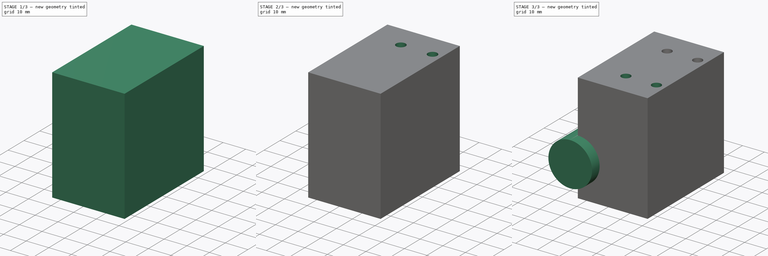
[diagram: build sequence overview — one tinted view per stage of 3, left to right]
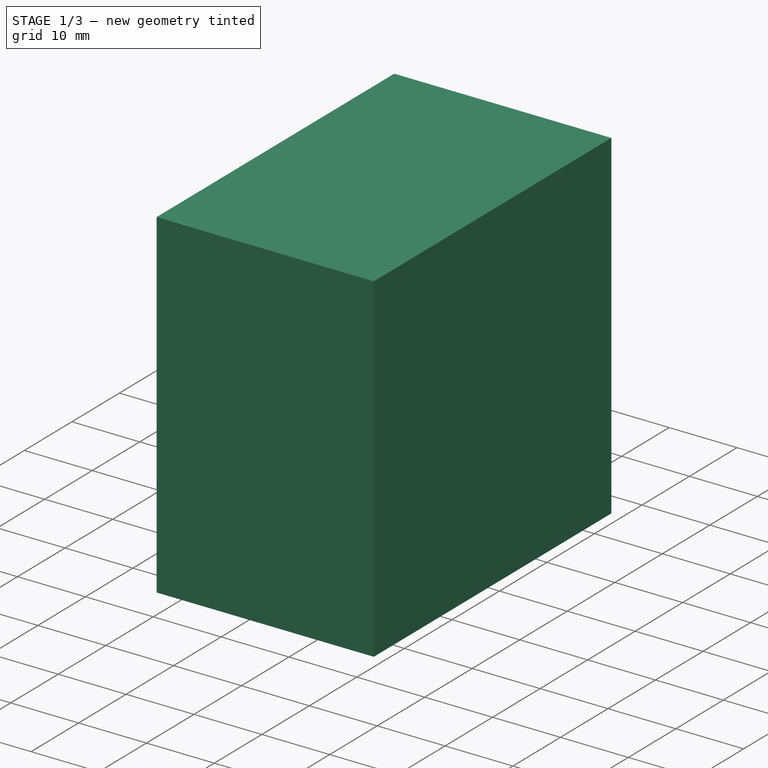
[diagram: stage 1 of 3 — iso view after this stage's code; geometry added in this stage tinted green]
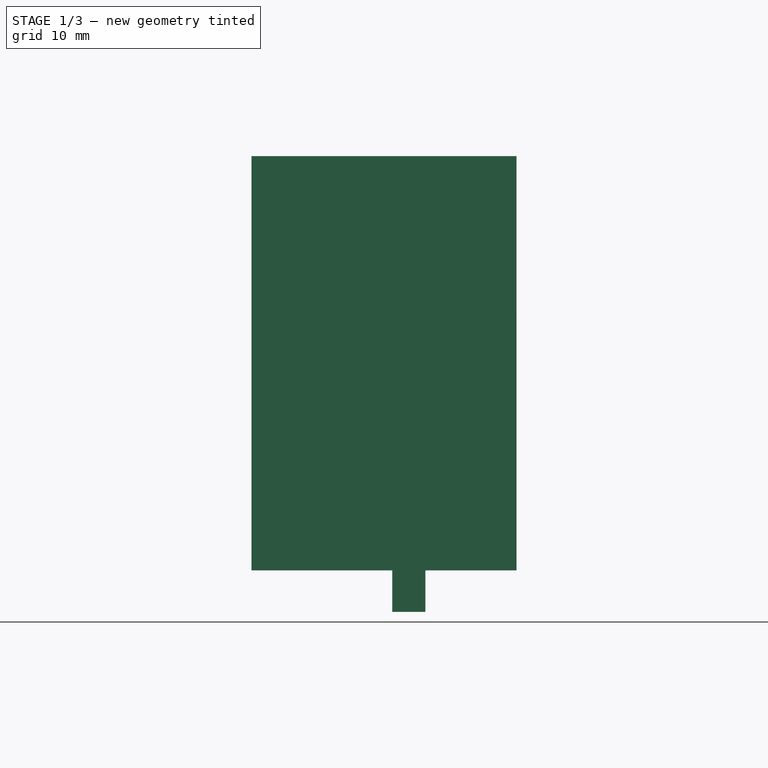
[diagram: stage 1 of 3 — front view after this stage's code; geometry added in this stage tinted green]
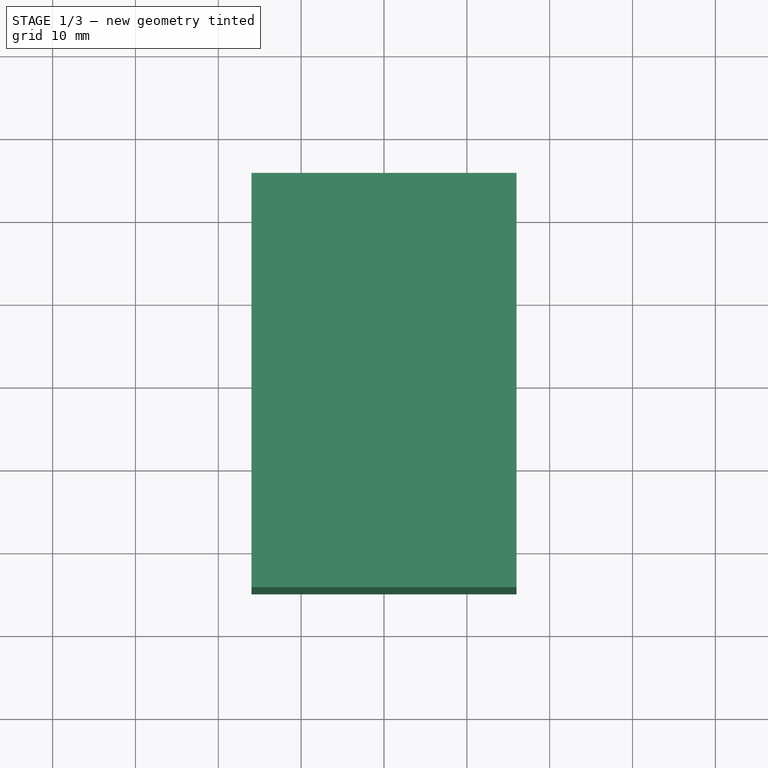
[diagram: stage 1 of 3 — top view after this stage's code; geometry added in this stage tinted green]
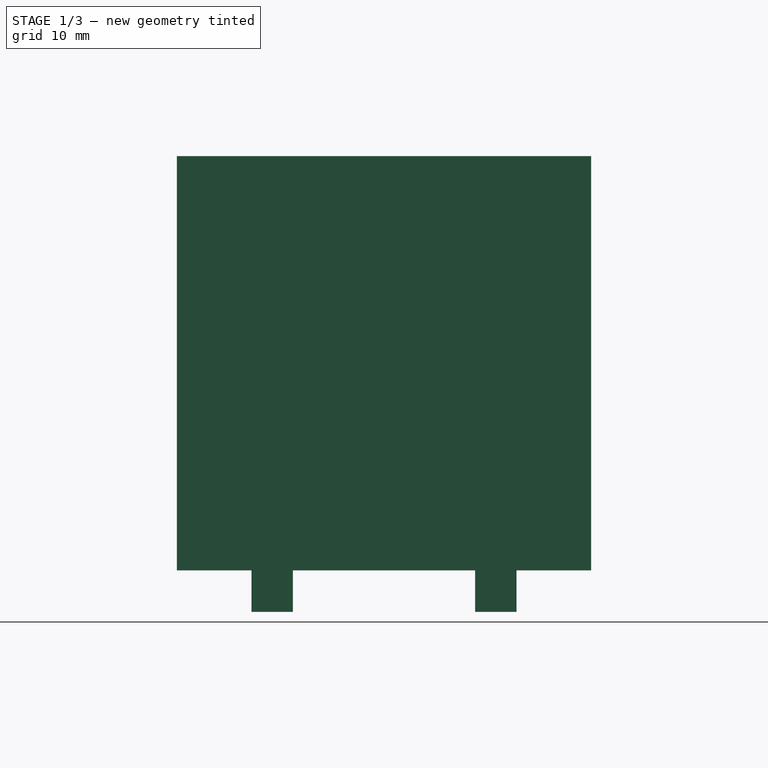
[diagram: stage 1 of 3 — right view after this stage's code; geometry added in this stage tinted green]
FCSTD DOCUMENT  (FreeCAD 2021.0205R23662 +3201 (Git))
Label: tutorial_entry_level
License: All rights reserved
LicenseURL: http://en.wikipedia.org/wiki/All_rights_reserved
objects: Sketcher::SketchObject×5, PartDesign::Pad×3, Spreadsheet::Sheet×1, PartDesign::Pocket×1, PartDesign::Mirrored×1, PartDesign::Plane×1, PartDesign::Body×1, App::Part×1
note: 21 computed .brp shape members not serialized (recipe doc carries the construction recipe); baked Part::Feature solids carry a one-line shape summary decoded from their .brp

FEATURE [Sketcher::SketchObject] Sketch  label="Master"
  FullyConstrained = true
  MapMode = 5
  Support = -> [XY_Plane001]
  sketch-geometry (4):
    g0: LineSegment StartX=-16 StartY=25 StartZ=0 EndX=16 EndY=25 EndZ=0
    g1: LineSegment StartX=16 StartY=25 StartZ=0 EndX=16 EndY=-25 EndZ=0
    g2: LineSegment StartX=16 StartY=-25 StartZ=0 EndX=-16 EndY=-25 EndZ=0
    g3: LineSegment StartX=-16 StartY=-25 StartZ=0 EndX=-16 EndY=25 EndZ=0
  constraints (11):
    c: Coincident(g0,g1)
    c: Coincident(g1,g2)
    c: Coincident(g2,g3)
    c: Coincident(g3,g0)
    c: Horizontal(g0)
    c: Horizontal(g2)
    c: Vertical(g1)
    c: Vertical(g3)
    c: DistanceX(g0,g0) = 32
    c: DistanceY(g3,g3) = 50  'body length'
    c: Symmetric(g2,g0,g-1)
FEATURE [Spreadsheet::Sheet] Spreadsheet  label="param"
  PythonMode = false
  cells = A1=height; B1(height)=50
FEATURE [Sketcher::SketchObject] Sketch001
  FullyConstrained = true
  MapMode = 5
  Support = -> [XY_Plane001]
  expr: Constraints[8] = Sketch.Constraints[8]
  expr: Constraints[9] = Sketch.Constraints.body length
  sketch-geometry (4):
    g0: LineSegment StartX=-16 StartY=25 StartZ=0 EndX=16 EndY=25 EndZ=0
    g1: LineSegment StartX=16 StartY=25 StartZ=0 EndX=16 EndY=-25 EndZ=0
    g2: LineSegment StartX=16 StartY=-25 StartZ=0 EndX=-16 EndY=-25 EndZ=0
    g3: LineSegment StartX=-16 StartY=-25 StartZ=0 EndX=-16 EndY=25 EndZ=0
  constraints (11):
    c: Coincident(g0,g1)
    c: Coincident(g1,g2)
    c: Coincident(g2,g3)
    c: Coincident(g3,g0)
    c: Horizontal(g0)
    c: Horizontal(g2)
    c: Vertical(g1)
    c: Vertical(g3)
    c: DistanceX(g0,g0) = 32
    c: DistanceY(g3,g3) = 50
    c: Symmetric(g2,g0,g-1)
FEATURE [PartDesign::Pad] Pad
  ClaimChildren = false
  Direction = (1,1,1)
  Fit = 0
  FitJoin = 0
  InnerFit = 0
  InnerFitJoin = 0
  InnerTaperAngle = 0
  InnerTaperAngleRev = 0
  Length = 50
  Length2 = 100
  NewSolid = false
  Profile = -> Sketch001
  Suppress = false
  Type = 0
  expr: Length = <<param>>.height
FEATURE [Sketcher::SketchObject] Sketch002
  ExternalGeometry = -> [Sketch]
  FullyConstrained = true
  MapMode = 5
  Support = -> [XY_Plane001]
  expr: Constraints[23] = Constraints[<<width of metal>>]
  sketch-geometry (18):
    g0: LineSegment [constr] StartX=5 StartY=40 StartZ=0 EndX=5 EndY=-44.2367 EndZ=0
    g1: LineSegment [constr] StartX=1 StartY=36.3522 StartZ=0 EndX=1 EndY=-44.845 EndZ=0
    g2: LineSegment [constr] StartX=-43.3108 StartY=11 StartZ=0 EndX=43.3108 EndY=11 EndZ=0
    g3: LineSegment [constr] StartX=43.3108 StartY=11 StartZ=0 EndX=43.3108 EndY=-11 EndZ=0
    g4: LineSegment [constr] StartX=43.3108 StartY=-11 StartZ=0 EndX=-43.3108 EndY=-11 EndZ=0
    g5: LineSegment [constr] StartX=-43.3108 StartY=-11 StartZ=0 EndX=-43.3108 EndY=11 EndZ=0
    g6: LineSegment [constr] StartX=-34.8374 StartY=16 StartZ=0 EndX=38.4067 EndY=16 EndZ=0
    g7: LineSegment [constr] StartX=38.4067 StartY=16 StartZ=0 EndX=38.4067 EndY=-16 EndZ=0
    g8: LineSegment [constr] StartX=38.4067 StartY=-16 StartZ=0 EndX=-34.8374 EndY=-16 EndZ=0
    g9: LineSegment [constr] StartX=-34.8374 StartY=-16 StartZ=0 EndX=-34.8374 EndY=16 EndZ=0
    g10: LineSegment StartX=1 StartY=16 StartZ=0 EndX=5 EndY=16 EndZ=0
    g11: LineSegment StartX=5 StartY=16 StartZ=0 EndX=5 EndY=11 EndZ=0
    g12: LineSegment StartX=5 StartY=11 StartZ=0 EndX=1 EndY=11 EndZ=0
    g13: LineSegment StartX=1 StartY=11 StartZ=0 EndX=1 EndY=16 EndZ=0
    g14: LineSegment StartX=1 StartY=-11 StartZ=0 EndX=5 EndY=-11 EndZ=0
    g15: LineSegment StartX=5 StartY=-11 StartZ=0 EndX=5 EndY=-16 EndZ=0
    g16: LineSegment StartX=5 StartY=-16 StartZ=0 EndX=1 EndY=-16 EndZ=0
    g17: LineSegment StartX=1 StartY=-16 StartZ=0 EndX=1 EndY=-11 EndZ=0
  constraints (54):
    c: Vertical(g0)
    c: Vertical(g1)
    c: DistanceX(g0,g-3) = 11
    c: DistanceX(g1,g0) = 4
    c: Coincident(g2,g3)
    c: Coincident(g3,g4)
    c: Coincident(g4,g5)
    c: Coincident(g5,g2)
    c: Horizontal(g2)
    c: Horizontal(g4)
    c: Vertical(g3)
    c: Vertical(g5)
    c: DistanceY(g5,g5) = 22
    c: Symmetric(g3,g2,g-1)
    c: Coincident(g6,g7)
    c: Coincident(g7,g8)
    c: Coincident(g8,g9)
    c: Coincident(g9,g6)
    c: Horizontal(g6)
    c: Horizontal(g8)
    c: Vertical(g7)
    c: Vertical(g9)
    c: DistanceY(g2,g6) = 5  'width of metal'
    c: DistanceY(g7,g3) = 5
    c: Coincident(g10,g11)
    c: Coincident(g11,g12)
    c: Coincident(g12,g13)
    c: Coincident(g13,g10)
    c: Horizontal(g10)
    c: Horizontal(g12)
    c: Vertical(g11)
    c: Vertical(g13)
    c: Coincident(g14,g15)
    c: Coincident(g15,g16)
    c: Coincident(g16,g17)
    c: Coincident(g17,g14)
    c: Horizontal(g14)
    c: Horizontal(g16)
    c: Vertical(g15)
    c: Vertical(g17)
    c: PointOnObject(g10,g6)
    c: PointOnObject(g10,g0)
    c: PointOnObject(g11,g2)
    c: PointOnObject(g12,g1)
    c: PointOnObject(g14,g4)
    c: PointOnObject(g15,g0)
    c: PointOnObject(g14,g1)
    c: PointOnObject(g16,g8)
    c: Block(g6)
    c: Block(g2)
    c: Block(g4)
    c: Block(g8)
    c: Block(g0)
    c: Block(g1)
FEATURE [PartDesign::Pad] Pad001
  BaseFeature = -> Pad
  ClaimChildren = false
  Direction = (1,1,1)
  Fit = 0
  FitJoin = 0
  InnerFit = 0
  InnerFitJoin = 0
  InnerTaperAngle = 0
  InnerTaperAngleRev = 0
  Length = 5
  Length2 = 100
  NewSolid = false
  Profile = -> Sketch002
  Reversed = true
  Suppress = false
  Type = 0
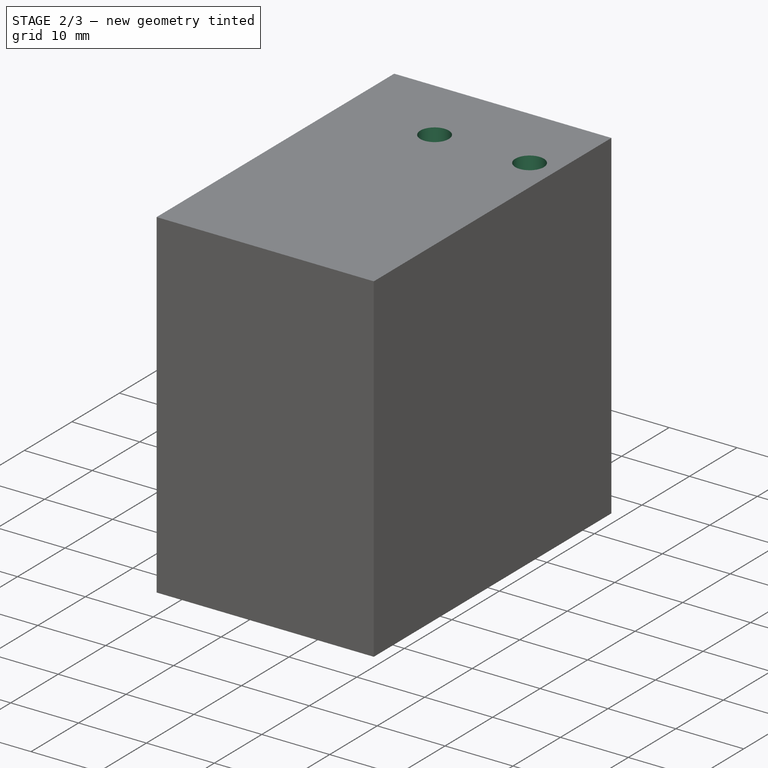
[diagram: stage 2 of 3 — iso view after this stage's code; geometry added in this stage tinted green]
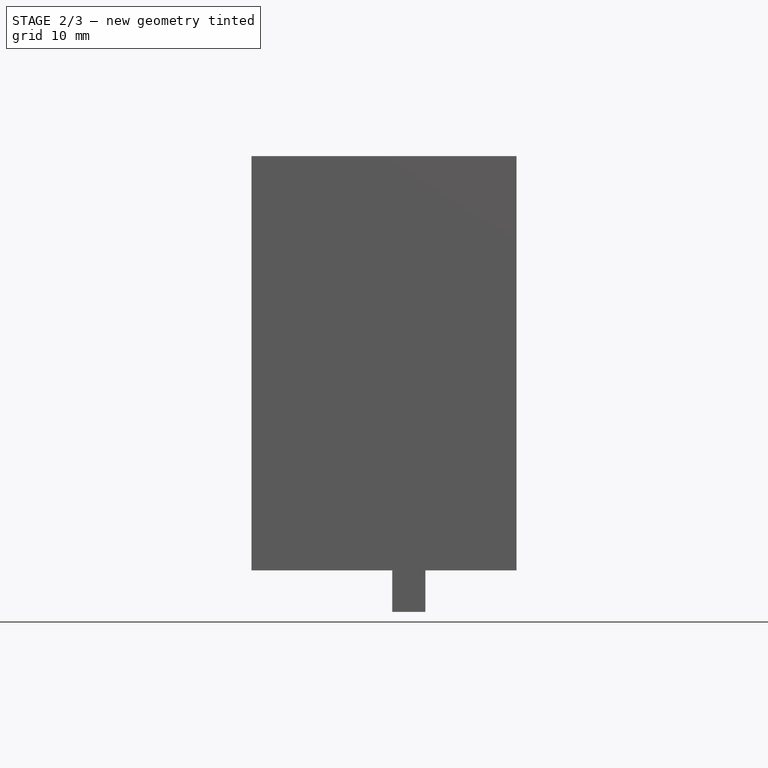
[diagram: stage 2 of 3 — front view after this stage's code; geometry added in this stage tinted green]
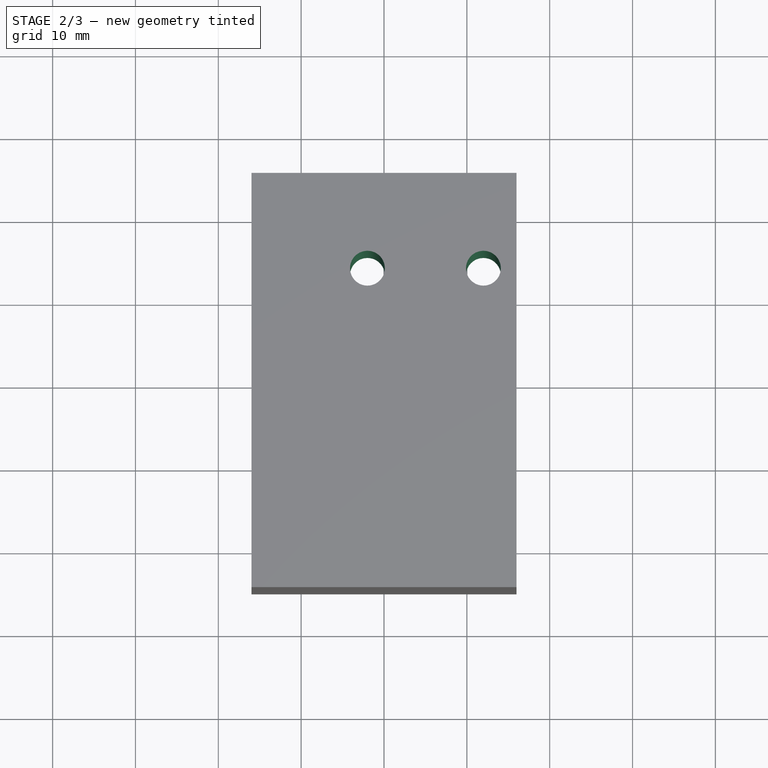
[diagram: stage 2 of 3 — top view after this stage's code; geometry added in this stage tinted green]
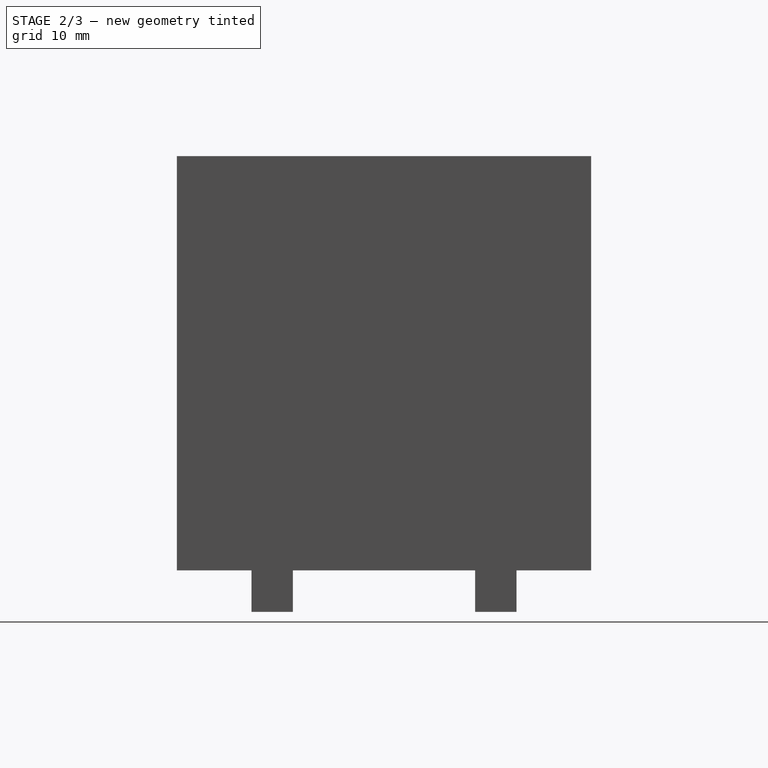
[diagram: stage 2 of 3 — right view after this stage's code; geometry added in this stage tinted green]
FEATURE [Sketcher::SketchObject] Sketch003
  ExternalGeometry = -> [Pad001]
  FullyConstrained = true
  MapMode = 5
  Support = -> [XY_Plane001]
  sketch-geometry (14):
    g0: LineSegment [constr] StartX=12 StartY=30 StartZ=0 EndX=16 EndY=30 EndZ=0
    g1: LineSegment [constr] StartX=16 StartY=30 StartZ=0 EndX=16 EndY=-30 EndZ=0
    g2: LineSegment [constr] StartX=16 StartY=-30 StartZ=0 EndX=12 EndY=-30 EndZ=0
    g3: LineSegment [constr] StartX=12 StartY=-30 StartZ=0 EndX=12 EndY=30 EndZ=0
    g4: LineSegment [constr] StartX=-2 StartY=33.74 StartZ=0 EndX=16 EndY=33.74 EndZ=0
    g5: LineSegment [constr] StartX=16 StartY=33.74 StartZ=0 EndX=16 EndY=-34.35 EndZ=0
    g6: LineSegment [constr] StartX=16 StartY=-34.35 StartZ=0 EndX=-2 EndY=-34.35 EndZ=0
    g7: LineSegment [constr] StartX=-2 StartY=-34.35 StartZ=0 EndX=-2 EndY=33.74 EndZ=0
    g8: Circle CenterX=-2 CenterY=13.5 CenterZ=0 NormalX=0 NormalY=0 NormalZ=1 AngleXU=0 Radius=2.1
    g9: Circle CenterX=12 CenterY=13.5 CenterZ=0 NormalX=0 NormalY=0 NormalZ=1 AngleXU=0 Radius=2.1
    g10: LineSegment [constr] StartX=1 StartY=16 StartZ=0 EndX=5 EndY=11 EndZ=0
    g11: LineSegment [constr] StartX=1 StartY=11 StartZ=0 EndX=5 EndY=16 EndZ=0
    g12: LineSegment [constr] StartX=-2 StartY=13.5 StartZ=0 EndX=12 EndY=13.5 EndZ=0
    g13: GeomPoint [constr] X=3 Y=13.5 Z=0
  constraints (38):
    c: Coincident(g0,g1)
    c: Coincident(g1,g2)
    c: Coincident(g2,g3)
    c: Coincident(g3,g0)
    c: Horizontal(g0)
    c: Horizontal(g2)
    c: Vertical(g1)
    c: Vertical(g3)
    c: Coincident(g4,g5)
    c: Coincident(g5,g6)
    c: Coincident(g6,g7)
    c: Coincident(g7,g4)
    c: Horizontal(g4)
    c: Horizontal(g6)
    c: Vertical(g5)
    c: Vertical(g7)
    c: Vertical(g0,g4)
    c: Vertical(g4,g-3)
    c: DistanceX(g4,g4) = 18
    c: DistanceX(g0,g0) = 4
    c: DistanceY(g7,g7) = 68.09
    c: DistanceY(g3,g3) = 60
    c: DistanceY(g6,g-1) = 34.35
    c: DistanceY(g2,g-1) = 30
    c: Diameter(g8) = 4.2
    c: Equal(g8,g9)
    c: Horizontal(g12)
    c: PointOnObject(g12,g7)
    c: PointOnObject(g12,g3)
    c: Coincident(g10,g-4)
    c: Coincident(g11,g-5)
    c: Coincident(g10,g-5)
    c: Coincident(g11,g-4)
    c: PointOnObject(g13,g11)
    c: PointOnObject(g13,g10)
    c: PointOnObject(g13,g12)
    c: Coincident(g12,g8)
    c: Coincident(g12,g9)
FEATURE [PartDesign::Pocket] Pocket
  BaseFeature = -> Pad001
  ClaimChildren = false
  Fit = 0
  FitJoin = 0
  InnerFit = 0
  InnerFitJoin = 0
  InnerTaperAngle = 0
  InnerTaperAngleRev = 0
  Length = 5
  Length2 = 100
  NewSolid = false
  Profile = -> Sketch003
  Reversed = true
  Suppress = false
  Type = 1
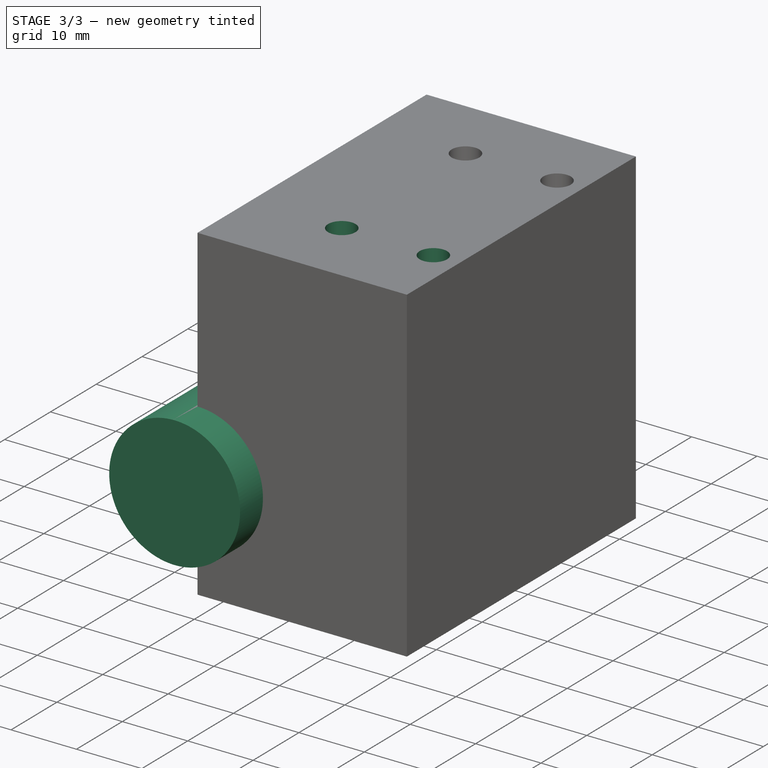
[diagram: stage 3 of 3 — iso view after this stage's code; geometry added in this stage tinted green]
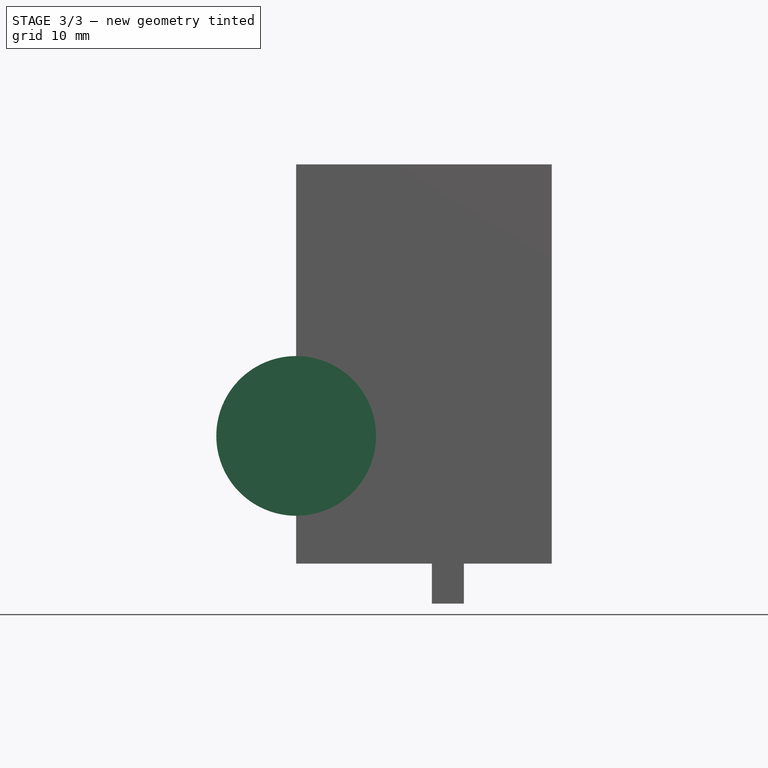
[diagram: stage 3 of 3 — front view after this stage's code; geometry added in this stage tinted green]
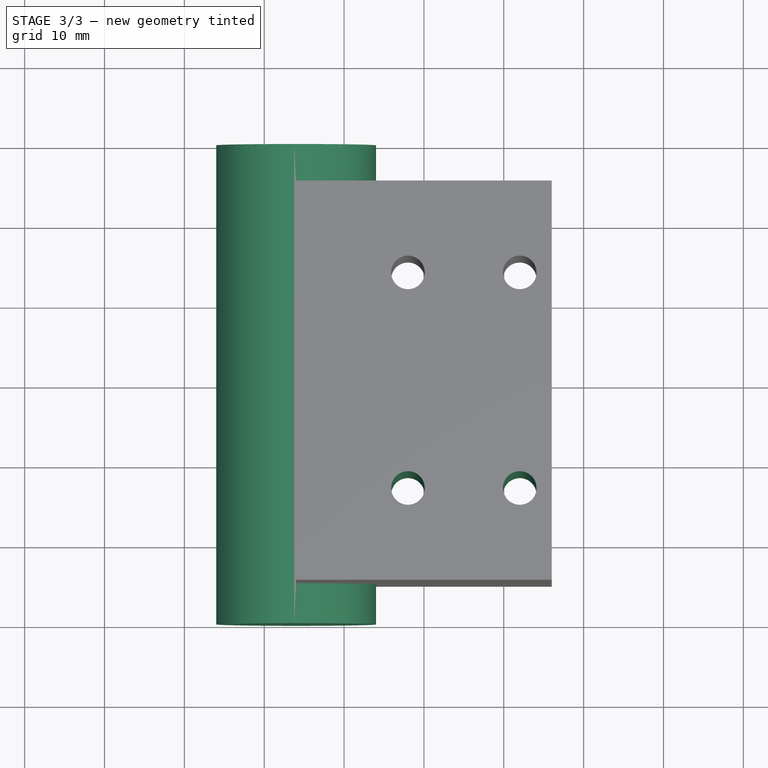
[diagram: stage 3 of 3 — top view after this stage's code; geometry added in this stage tinted green]
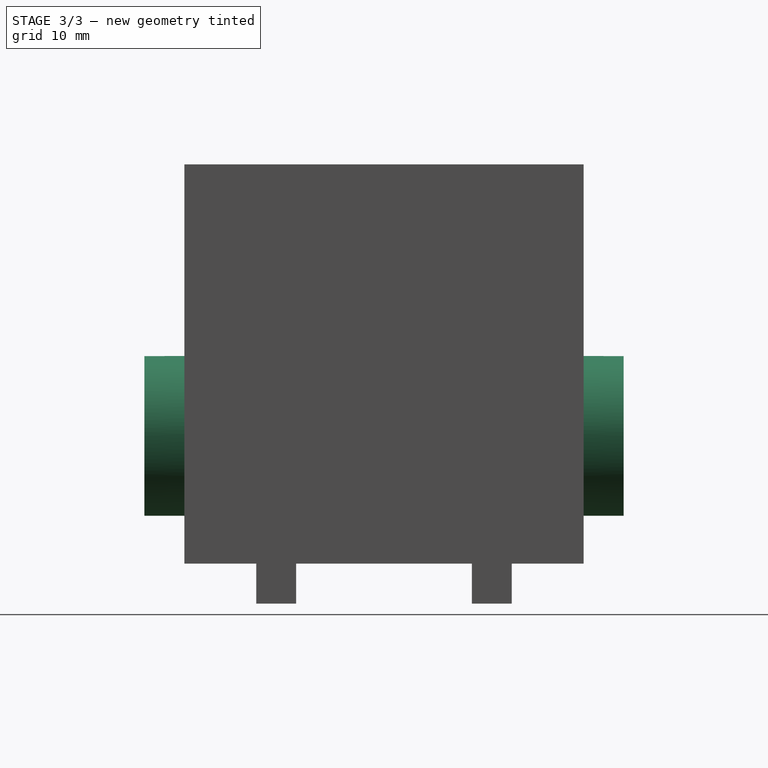
[diagram: stage 3 of 3 — right view after this stage's code; geometry added in this stage tinted green]
FEATURE [PartDesign::Mirrored] Mirrored
  BaseFeature = -> Pocket
  CopyShape = false
  MirrorPlane = -> Sketch003 [H_Axis]
  NewSolid = false
  OriginalSubs = -> [Pocket]
  Originals = -> [Pocket]
  SubTransform = true
  Suppress = false
FEATURE [PartDesign::Plane] DatumPlane  label="Front"
  AttachmentOffset = pos=(0,0,25) rot=(0,0,1;0rad)
  Length = 42
  MapMode = 5
  MinimumLength = 10
  MinimumWidth = 10
  Placement = pos=(0,25,5.6e-15) rot=(0,0.707107,0.707107;3.14159rad)
  ResizeMode = 0
  Support = -> [XZ_Plane001]
  Width = 55
  expr: .AttachmentOffset.Base.z = <<Master>>.Constraints[<<body length>>] / 2
FEATURE [Sketcher::SketchObject] Sketch004
  ExternalGeometry = -> [Sketch]
  FullyConstrained = true
  MapMode = 5
  Placement = pos=(0,25,5.6e-15) rot=(0,0.707107,0.707107;3.14159rad)
  Support = -> [DatumPlane]
  sketch-geometry (3):
    g0: Circle [constr] CenterX=16 CenterY=16 CenterZ=0 NormalX=0 NormalY=0 NormalZ=1 AngleXU=0 Radius=7.5
    g1: LineSegment [constr] StartX=16 StartY=16 StartZ=0 EndX=16 EndY=0 EndZ=0
    g2: Circle CenterX=16 CenterY=16 CenterZ=0 NormalX=0 NormalY=0 NormalZ=1 AngleXU=0 Radius=10
  constraints (7):
    c: Diameter(g0) = 15
    c: Coincident(g1,g0)
    c: Coincident(g1,g-3)
    c: Vertical(g1)
    c: DistanceY(g1,g1) = 16
    c: Coincident(g0,g2)
    c: Diameter(g2) = 20
FEATURE [PartDesign::Pad] Pad002
  BaseFeature = -> Mirrored
  ClaimChildren = false
  Direction = (1,1,1)
  Fit = 0
  FitJoin = 0
  InnerFit = 0
  InnerFitJoin = 0
  InnerTaperAngle = 0
  InnerTaperAngleRev = 0
  Length = 5
  Length2 = 55
  NewSolid = false
  Profile = -> Sketch004
  Suppress = false
  Type = 4
FEATURE [PartDesign::Body] Body
  AutoGroupSolids = false
  ExportMode = 0
  Group = -> [Sketch,Sketch001,Pad,Sketch002,Pad001,Sketch003,Pocket,Mirrored,DatumPlane,Sketch004,Pad002]
  Origin = -> Origin001
  Tip = -> Pad002
  _ExportChildren = -> [Sketch,Pad,Pad001,Pocket,Mirrored,DatumPlane,Pad002]
  _GroupVersion = 1
FEATURE [App::Part] Part
  ExportMode = 1
  Group = -> [Body]
  Origin = -> Origin
  _ExportChildren = -> [Body]
  _GroupVersion = 1
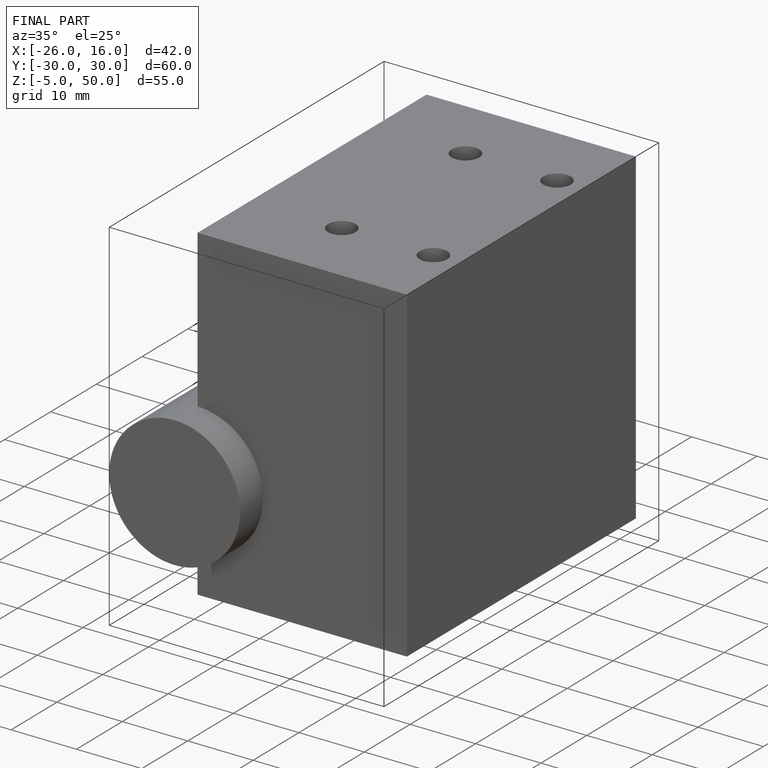
[diagram: finished part — iso view with bounding-box wireframe]
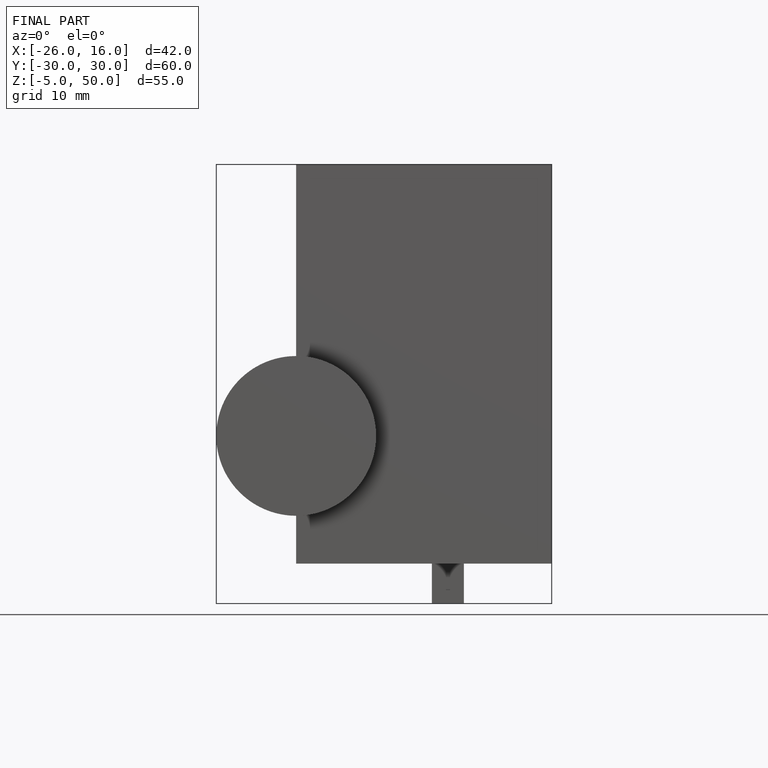
[diagram: finished part — front view with bounding-box wireframe]
